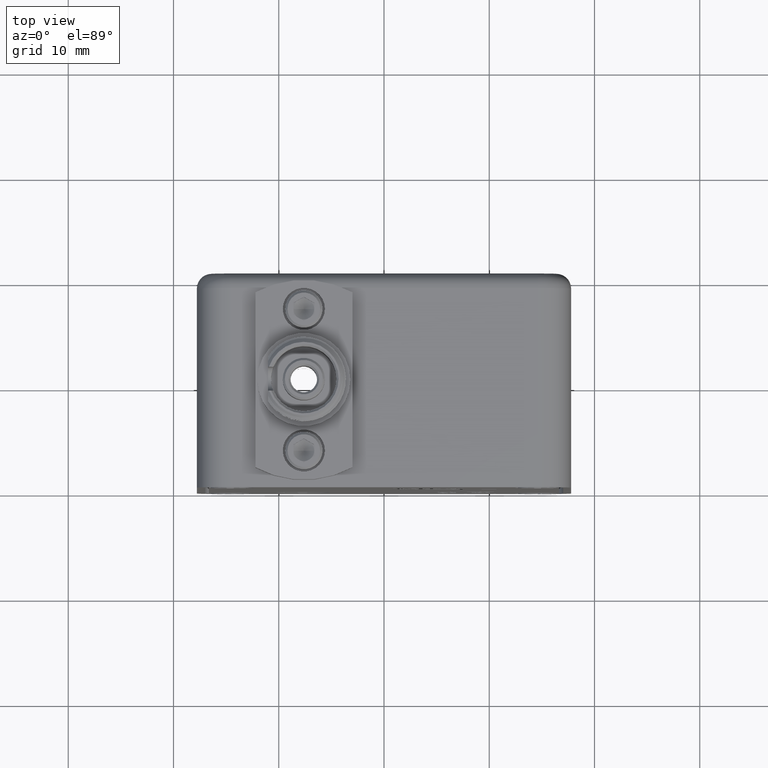
[diagram: clean part render]
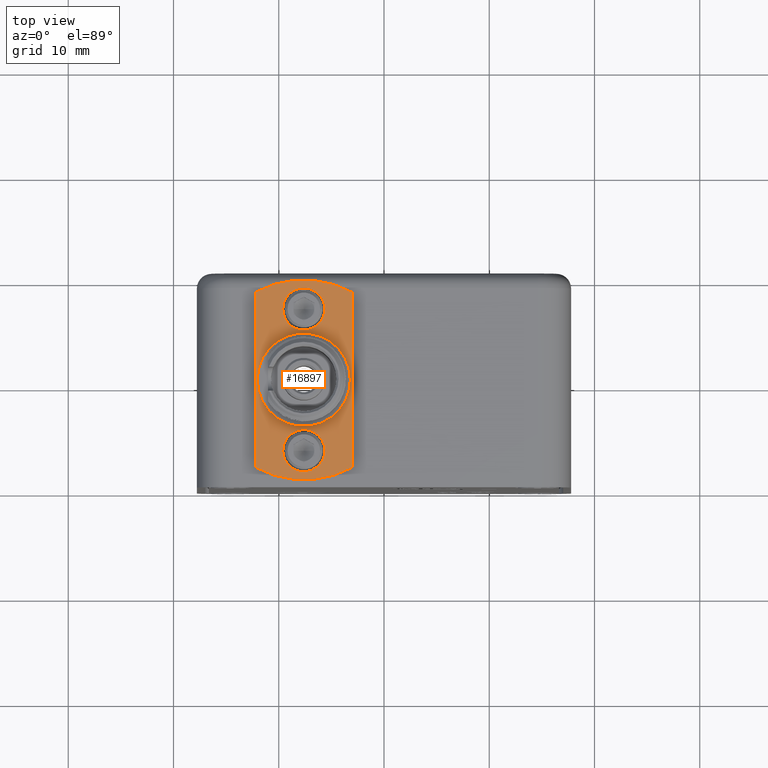
[diagram: same view with one face highlighted and labeled with its STEP entity id]
A machine part, top view. The second image highlights one B-rep face of the part: STEP entity #16897.
In plain terms, the highlighted planar face has unit normal (0, 0, 1).
Its self-contained STEP definition (entity closure, byte-faithful):
#15542 = EDGE_CURVE ( 'NONE', #15681, #15638, #33089, .T. ) ;
#15545 = EDGE_CURVE ( 'NONE', #15595, #15546, #33076, .T. ) ;
#15546 = VERTEX_POINT ( 'NONE', #33194 ) ;
#15569 = VERTEX_POINT ( 'NONE', #33239 ) ;
#15571 = EDGE_CURVE ( 'NONE', #15569, #15572, #33235, .T. ) ;
#15572 = VERTEX_POINT ( 'NONE', #33230 ) ;
#15595 = VERTEX_POINT ( 'NONE', #33265 ) ;
#15638 = VERTEX_POINT ( 'NONE', #33430 ) ;
#15681 = VERTEX_POINT ( 'NONE', #33557 ) ;
#16719 = VERTEX_POINT ( 'NONE', #45491 ) ;
#16723 = EDGE_CURVE ( 'NONE', #16747, #16719, #45489, .T. ) ;
#16733 = EDGE_CURVE ( 'NONE', #15572, #15569, #45533, .T. ) ;
#16747 = VERTEX_POINT ( 'NONE', #45559 ) ;
#16770 = EDGE_CURVE ( 'NONE', #15638, #15681, #45590, .T. ) ;
#16831 = VERTEX_POINT ( 'NONE', #45732 ) ;
#16833 = EDGE_CURVE ( 'NONE', #16719, #16831, #45730, .T. ) ;
#16838 = EDGE_CURVE ( 'NONE', #16839, #16747, #45761, .T. ) ;
#16839 = VERTEX_POINT ( 'NONE', #45757 ) ;
#16861 = ORIENTED_EDGE ( 'NONE', *, *, #15571, .F. ) ;
#16864 = EDGE_LOOP ( 'NONE', ( #16866, #16869 ) ) ;
#16866 = ORIENTED_EDGE ( 'NONE', *, *, #16868, .F. ) ;
#16868 = EDGE_CURVE ( 'NONE', #15546, #15595, #45775, .T. ) ;
#16869 = ORIENTED_EDGE ( 'NONE', *, *, #15545, .F. ) ;
#16870 = EDGE_LOOP ( 'NONE', ( #16872, #16874 ) ) ;
#16872 = ORIENTED_EDGE ( 'NONE', *, *, #16770, .F. ) ;
#16874 = ORIENTED_EDGE ( 'NONE', *, *, #15542, .F. ) ;
#16892 = EDGE_CURVE ( 'NONE', #16831, #16839, #45846, .T. ) ;
#16897 = ADVANCED_FACE ( 'NONE', ( #45841, #45840, #45839, #45838 ), #45877, .T. ) ;
#16900 = EDGE_LOOP ( 'NONE', ( #16901, #16902, #16903, #16904 ) ) ;
#16901 = ORIENTED_EDGE ( 'NONE', *, *, #16892, .T. ) ;
#16902 = ORIENTED_EDGE ( 'NONE', *, *, #16838, .T. ) ;
#16903 = ORIENTED_EDGE ( 'NONE', *, *, #16723, .T. ) ;
#16904 = ORIENTED_EDGE ( 'NONE', *, *, #16833, .T. ) ;
#16905 = EDGE_LOOP ( 'NONE', ( #16907, #16861 ) ) ;
#16907 = ORIENTED_EDGE ( 'NONE', *, *, #16733, .F. ) ;
#33075 = AXIS2_PLACEMENT_3D ( 'NONE', #33200, #33198, #33197 ) ;
#33076 = CIRCLE ( 'NONE', #33075, 0.07874015748031496000 ) ;
#33082 = DIRECTION ( 'NONE',  ( 1.000000000000000000, 0.0000000000000000000, 0.0000000000000000000 ) ) ;
#33084 = DIRECTION ( 'NONE',  ( 0.0000000000000000000, 0.0000000000000000000, 1.000000000000000000 ) ) ;
#33086 = CARTESIAN_POINT ( 'NONE',  ( -0.3000000000000000400, 0.4000000000000000200, 0.07874015748031496000 ) ) ;
#33087 = AXIS2_PLACEMENT_3D ( 'NONE', #33086, #33084, #33082 ) ;
#33089 = CIRCLE ( 'NONE', #33087, 0.1742125984251969000 ) ;
#33194 = CARTESIAN_POINT ( 'NONE',  ( -0.2212598425196850800, 0.1350000000000000400, 0.07874015748031496000 ) ) ;
#33197 = DIRECTION ( 'NONE',  ( 1.000000000000000000, 0.0000000000000000000, 0.0000000000000000000 ) ) ;
#33198 = DIRECTION ( 'NONE',  ( 0.0000000000000000000, 0.0000000000000000000, 1.000000000000000000 ) ) ;
#33200 = CARTESIAN_POINT ( 'NONE',  ( -0.3000000000000000400, 0.1350000000000000400, 0.07874015748031496000 ) ) ;
#33230 = CARTESIAN_POINT ( 'NONE',  ( -0.2212598425196850800, 0.6650000000000000400, 0.07874015748031496000 ) ) ;
#33231 = DIRECTION ( 'NONE',  ( 1.000000000000000000, 0.0000000000000000000, 0.0000000000000000000 ) ) ;
#33232 = DIRECTION ( 'NONE',  ( 0.0000000000000000000, 0.0000000000000000000, 1.000000000000000000 ) ) ;
#33233 = CARTESIAN_POINT ( 'NONE',  ( -0.3000000000000000400, 0.6650000000000000400, 0.07874015748031496000 ) ) ;
#33234 = AXIS2_PLACEMENT_3D ( 'NONE', #33233, #33232, #33231 ) ;
#33235 = CIRCLE ( 'NONE', #33234, 0.07874015748031496000 ) ;
#33239 = CARTESIAN_POINT ( 'NONE',  ( -0.3787401574803149800, 0.6650000000000000400, 0.07874015748031496000 ) ) ;
#33265 = CARTESIAN_POINT ( 'NONE',  ( -0.3787401574803149800, 0.1350000000000000400, 0.07874015748031496000 ) ) ;
#33430 = CARTESIAN_POINT ( 'NONE',  ( -0.4742125984251969200, 0.4000000000000000200, 0.07874015748031496000 ) ) ;
#33557 = CARTESIAN_POINT ( 'NONE',  ( -0.1257874015748031400, 0.4000000000000000200, 0.07874015748031496000 ) ) ;
#45485 = DIRECTION ( 'NONE',  ( 1.000000000000000000, 0.0000000000000000000, 0.0000000000000000000 ) ) ;
#45486 = DIRECTION ( 'NONE',  ( 0.0000000000000000000, 0.0000000000000000000, 1.000000000000000000 ) ) ;
#45487 = CARTESIAN_POINT ( 'NONE',  ( -0.3000000000000000400, 0.4000000000000000200, 0.07874015748031496000 ) ) ;
#45488 = AXIS2_PLACEMENT_3D ( 'NONE', #45487, #45486, #45485 ) ;
#45489 = CIRCLE ( 'NONE', #45488, 0.3740157480314960600 ) ;
#45491 = CARTESIAN_POINT ( 'NONE',  ( -0.4811023622047244700, 0.7272456480679740900, 0.07874015748031496000 ) ) ;
#45529 = DIRECTION ( 'NONE',  ( 1.000000000000000000, 0.0000000000000000000, 0.0000000000000000000 ) ) ;
#45530 = DIRECTION ( 'NONE',  ( 0.0000000000000000000, 0.0000000000000000000, 1.000000000000000000 ) ) ;
#45531 = CARTESIAN_POINT ( 'NONE',  ( -0.3000000000000000400, 0.6650000000000000400, 0.07874015748031496000 ) ) ;
#45532 = AXIS2_PLACEMENT_3D ( 'NONE', #45531, #45530, #45529 ) ;
#45533 = CIRCLE ( 'NONE', #45532, 0.07874015748031496000 ) ;
#45559 = CARTESIAN_POINT ( 'NONE',  ( -0.1188976377952756700, 0.7272456480679740900, 0.07874015748031496000 ) ) ;
#45587 = DIRECTION ( 'NONE',  ( 1.000000000000000000, 0.0000000000000000000, 0.0000000000000000000 ) ) ;
#45588 = DIRECTION ( 'NONE',  ( 0.0000000000000000000, 0.0000000000000000000, 1.000000000000000000 ) ) ;
#45589 = AXIS2_PLACEMENT_3D ( 'NONE', #45596, #45588, #45587 ) ;
#45590 = CIRCLE ( 'NONE', #45589, 0.1742125984251969000 ) ;
#45596 = CARTESIAN_POINT ( 'NONE',  ( -0.3000000000000000400, 0.4000000000000000200, 0.07874015748031496000 ) ) ;
#45727 = DIRECTION ( 'NONE',  ( 0.0000000000000000000, -1.000000000000000000, 0.0000000000000000000 ) ) ;
#45728 = VECTOR ( 'NONE', #45727, 39.37007874015748100 ) ;
#45729 = CARTESIAN_POINT ( 'NONE',  ( -0.4811023622047244700, 0.07275435193202593700, 0.07874015748031496000 ) ) ;
#45730 = LINE ( 'NONE', #45729, #45728 ) ;
#45732 = CARTESIAN_POINT ( 'NONE',  ( -0.4811023622047244700, 0.07275435193202593700, 0.07874015748031496000 ) ) ;
#45757 = CARTESIAN_POINT ( 'NONE',  ( -0.1188976377952756400, 0.07275435193202593700, 0.07874015748031496000 ) ) ;
#45758 = DIRECTION ( 'NONE',  ( 0.0000000000000000000, 1.000000000000000000, 0.0000000000000000000 ) ) ;
#45759 = VECTOR ( 'NONE', #45758, 39.37007874015748100 ) ;
#45760 = CARTESIAN_POINT ( 'NONE',  ( -0.1188976377952756400, 0.07275435193202593700, 0.07874015748031496000 ) ) ;
#45761 = LINE ( 'NONE', #45760, #45759 ) ;
#45771 = DIRECTION ( 'NONE',  ( 1.000000000000000000, 0.0000000000000000000, 0.0000000000000000000 ) ) ;
#45772 = DIRECTION ( 'NONE',  ( 0.0000000000000000000, 0.0000000000000000000, 1.000000000000000000 ) ) ;
#45773 = CARTESIAN_POINT ( 'NONE',  ( -0.3000000000000000400, 0.1350000000000000400, 0.07874015748031496000 ) ) ;
#45774 = AXIS2_PLACEMENT_3D ( 'NONE', #45773, #45772, #45771 ) ;
#45775 = CIRCLE ( 'NONE', #45774, 0.07874015748031496000 ) ;
#45838 = FACE_BOUND ( 'NONE', #16870, .T. ) ;
#45839 = FACE_BOUND ( 'NONE', #16864, .T. ) ;
#45840 = FACE_BOUND ( 'NONE', #16905, .T. ) ;
#45841 = FACE_OUTER_BOUND ( 'NONE', #16900, .T. ) ;
#45842 = DIRECTION ( 'NONE',  ( 1.000000000000000000, 0.0000000000000000000, 0.0000000000000000000 ) ) ;
#45843 = DIRECTION ( 'NONE',  ( 0.0000000000000000000, 0.0000000000000000000, 1.000000000000000000 ) ) ;
#45844 = CARTESIAN_POINT ( 'NONE',  ( -0.3000000000000000400, 0.4000000000000000200, 0.07874015748031496000 ) ) ;
#45845 = AXIS2_PLACEMENT_3D ( 'NONE', #45844, #45843, #45842 ) ;
#45846 = CIRCLE ( 'NONE', #45845, 0.3740157480314960600 ) ;
#45873 = DIRECTION ( 'NONE',  ( 1.000000000000000000, 0.0000000000000000000, 0.0000000000000000000 ) ) ;
#45874 = DIRECTION ( 'NONE',  ( 0.0000000000000000000, 0.0000000000000000000, 1.000000000000000000 ) ) ;
#45875 = CARTESIAN_POINT ( 'NONE',  ( -0.3000000000000000400, 0.4000000000000000200, 0.07874015748031496000 ) ) ;
#45876 = AXIS2_PLACEMENT_3D ( 'NONE', #45875, #45874, #45873 ) ;
#45877 = PLANE ( 'NONE',  #45876 ) ;